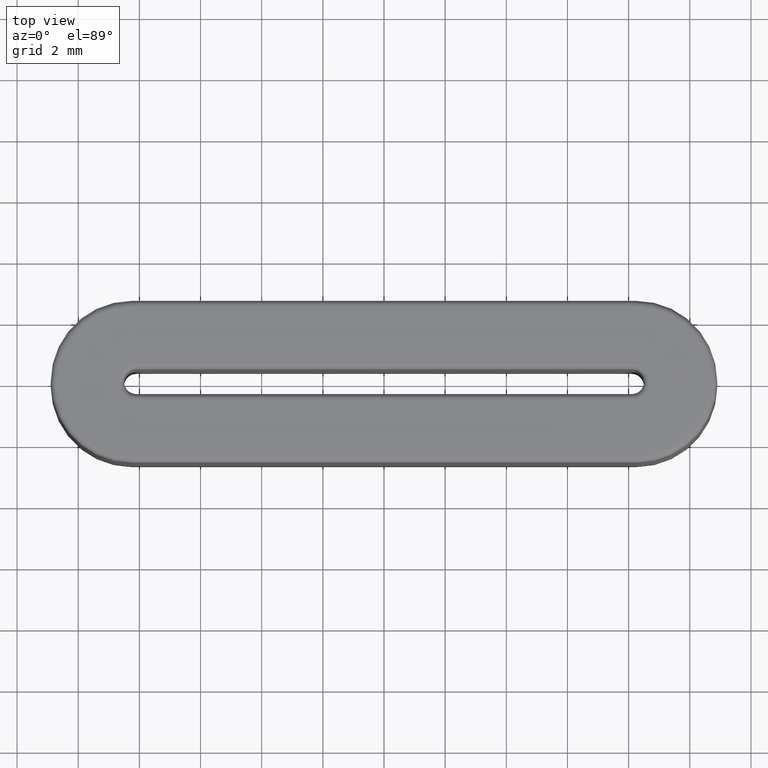
[diagram: clean part render]
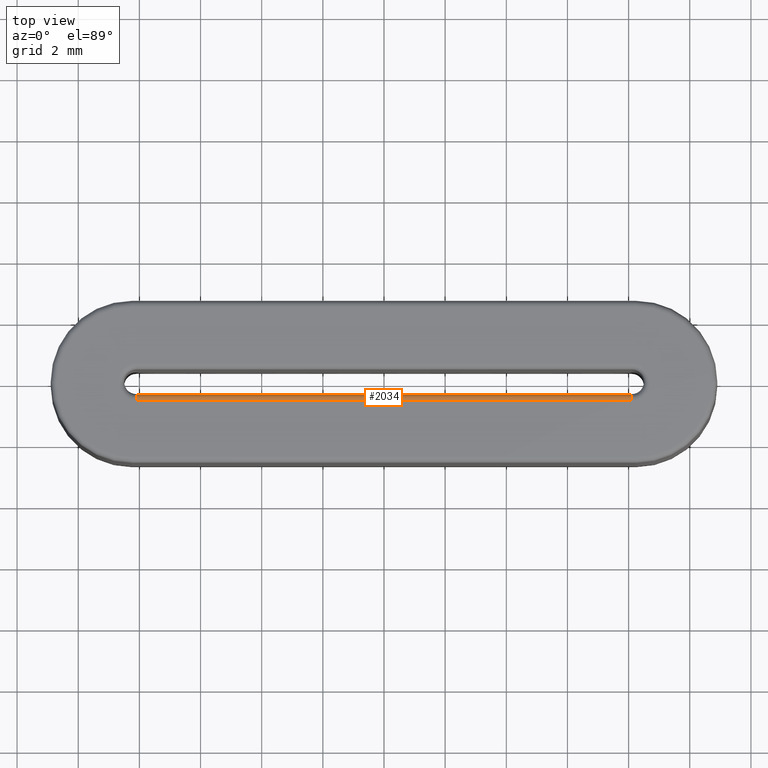
[diagram: same view with one face highlighted and labeled with its STEP entity id]
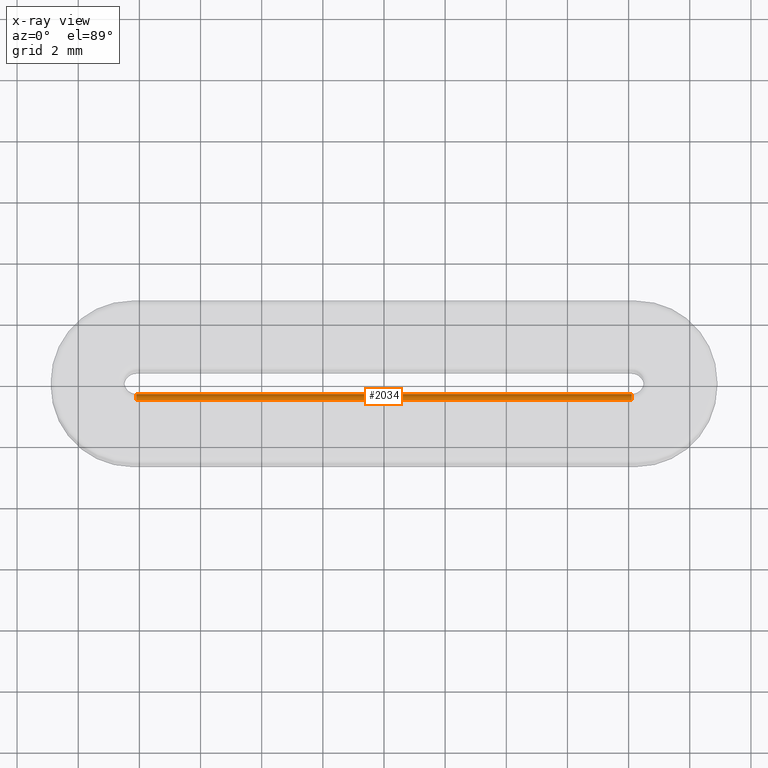
[diagram: x-ray of the same camera — body ghosted, the highlighted face saturated]
A machine part, top view. The second image highlights one B-rep face of the part: STEP entity #2034.
The next image is the same camera in x-ray: the body ghosted, the highlighted face saturated — about 0% of this face is hidden behind the body in this view.
In plain terms, the highlighted cylindrical surface (edge-blend (fillet) strip) has radius 0.2 mm, axis along (1, -0, 0).
Its self-contained STEP definition (entity closure, byte-faithful):
#107 = VERTEX_POINT ( 'NONE', #2667 ) ;
#319 = CARTESIAN_POINT ( 'NONE',  ( -8.500000000000000000, -0.4000000000000000222, 8.099999999999999645 ) ) ;
#321 = ORIENTED_EDGE ( 'NONE', *, *, #334, .F. ) ;
#330 = CARTESIAN_POINT ( 'NONE',  ( 0.000000000000000000, -0.6000000000000000888, 8.300000000000000711 ) ) ;
#334 = EDGE_CURVE ( 'NONE', #1632, #412, #1675, .T. ) ;
#412 = VERTEX_POINT ( 'NONE', #2787 ) ;
#452 = CARTESIAN_POINT ( 'NONE',  ( -8.500000000000000000, -0.6000000000000000888, 8.099999999999999645 ) ) ;
#594 = CARTESIAN_POINT ( 'NONE',  ( 8.099999999999999645, -0.6000000000000000888, 8.099999999999999645 ) ) ;
#752 = CYLINDRICAL_SURFACE ( 'NONE', #1573, 0.2000000000000005107 ) ;
#803 = EDGE_CURVE ( 'NONE', #2396, #1632, #805, .T. ) ;
#805 = CIRCLE ( 'NONE', #2749, 0.2000000000000005107 ) ;
#944 = DIRECTION ( 'NONE',  ( -1.000000000000000000, 0.000000000000000000, 0.000000000000000000 ) ) ;
#954 = FACE_OUTER_BOUND ( 'NONE', #3213, .T. ) ;
#966 = VECTOR ( 'NONE', #3227, 1000.000000000000000 ) ;
#987 = ORIENTED_EDGE ( 'NONE', *, *, #803, .F. ) ;
#1009 = CARTESIAN_POINT ( 'NONE',  ( -8.100000000000001421, -0.6000000000000000888, 8.099999999999999645 ) ) ;
#1089 = LINE ( 'NONE', #330, #1908 ) ;
#1200 = EDGE_CURVE ( 'NONE', #107, #2396, #1089, .T. ) ;
#1300 = EDGE_CURVE ( 'NONE', #107, #412, #2965, .T. ) ;
#1392 = DIRECTION ( 'NONE',  ( -1.000000000000000000, 0.000000000000000000, 0.000000000000000000 ) ) ;
#1457 = AXIS2_PLACEMENT_3D ( 'NONE', #594, #1392, #1599 ) ;
#1481 = DIRECTION ( 'NONE',  ( 0.000000000000000000, 0.000000000000000000, 1.000000000000000000 ) ) ;
#1573 = AXIS2_PLACEMENT_3D ( 'NONE', #452, #1808, #2352 ) ;
#1599 = DIRECTION ( 'NONE',  ( 0.000000000000000000, 0.000000000000000000, 1.000000000000000000 ) ) ;
#1632 = VERTEX_POINT ( 'NONE', #3061 ) ;
#1675 = LINE ( 'NONE', #319, #966 ) ;
#1808 = DIRECTION ( 'NONE',  ( 1.000000000000000000, -0.000000000000000000, 0.000000000000000000 ) ) ;
#1908 = VECTOR ( 'NONE', #2168, 1000.000000000000000 ) ;
#2034 = ADVANCED_FACE ( 'NONE', ( #954 ), #752, .T. ) ;
#2168 = DIRECTION ( 'NONE',  ( -1.000000000000000000, -0.000000000000000000, -0.000000000000000000 ) ) ;
#2352 = DIRECTION ( 'NONE',  ( 0.000000000000000000, 0.000000000000000000, -1.000000000000000000 ) ) ;
#2396 = VERTEX_POINT ( 'NONE', #3253 ) ;
#2667 = CARTESIAN_POINT ( 'NONE',  ( 8.099999999999999645, -0.6000000000000000888, 8.300000000000000711 ) ) ;
#2749 = AXIS2_PLACEMENT_3D ( 'NONE', #1009, #944, #1481 ) ;
#2787 = CARTESIAN_POINT ( 'NONE',  ( 8.099999999999999645, -0.4000000000000000222, 8.099999999999999645 ) ) ;
#2796 = ORIENTED_EDGE ( 'NONE', *, *, #1200, .F. ) ;
#2965 = CIRCLE ( 'NONE', #1457, 0.2000000000000005107 ) ;
#2992 = ORIENTED_EDGE ( 'NONE', *, *, #1300, .T. ) ;
#3061 = CARTESIAN_POINT ( 'NONE',  ( -8.100000000000001421, -0.4000000000000000222, 8.099999999999999645 ) ) ;
#3213 = EDGE_LOOP ( 'NONE', ( #2992, #321, #987, #2796 ) ) ;
#3227 = DIRECTION ( 'NONE',  ( 1.000000000000000000, -0.000000000000000000, 0.000000000000000000 ) ) ;
#3253 = CARTESIAN_POINT ( 'NONE',  ( -8.100000000000001421, -0.6000000000000000888, 8.300000000000000711 ) ) ;